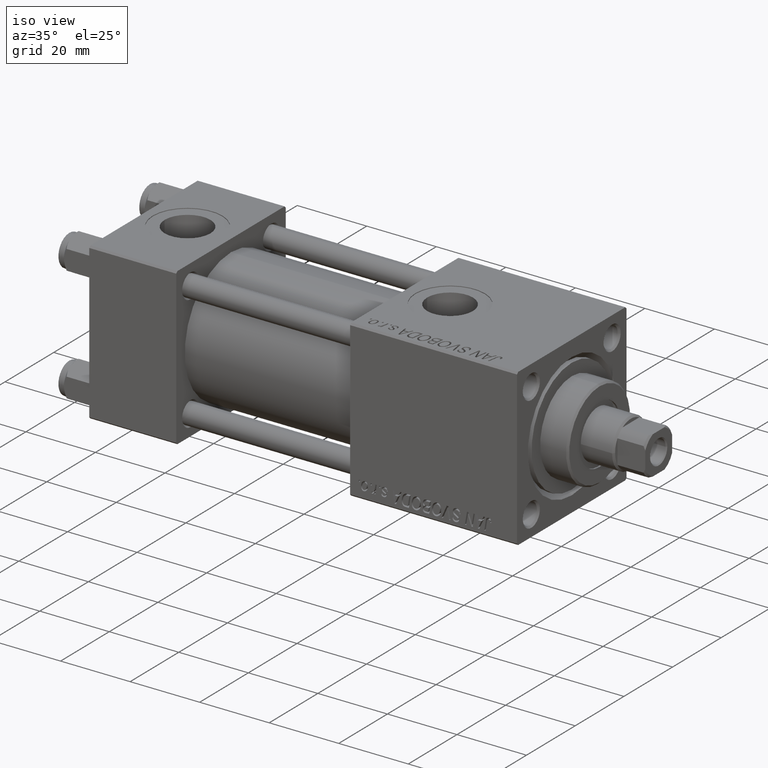
[diagram: clean part render]
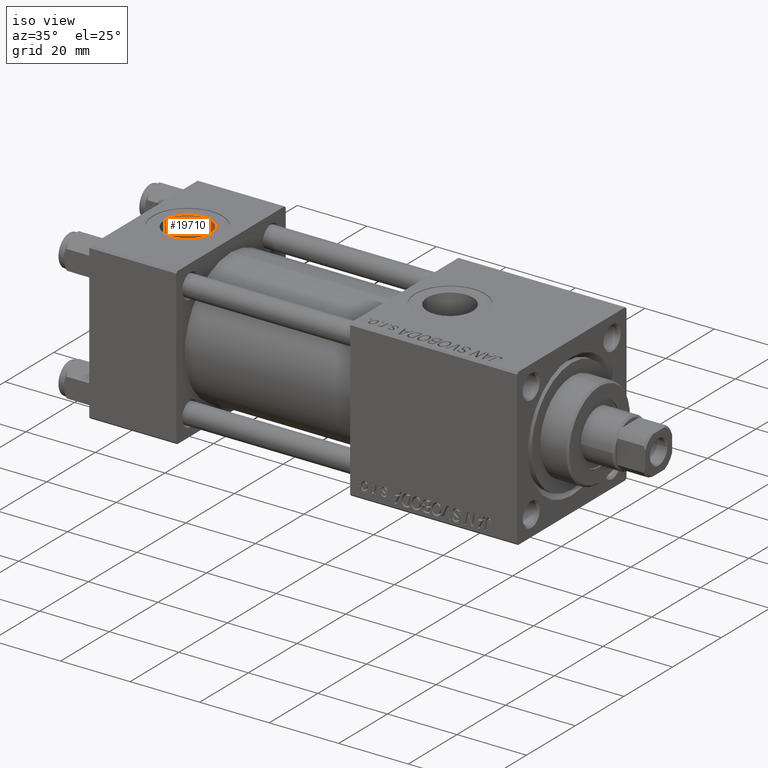
[diagram: same view with one face highlighted and labeled with its STEP entity id]
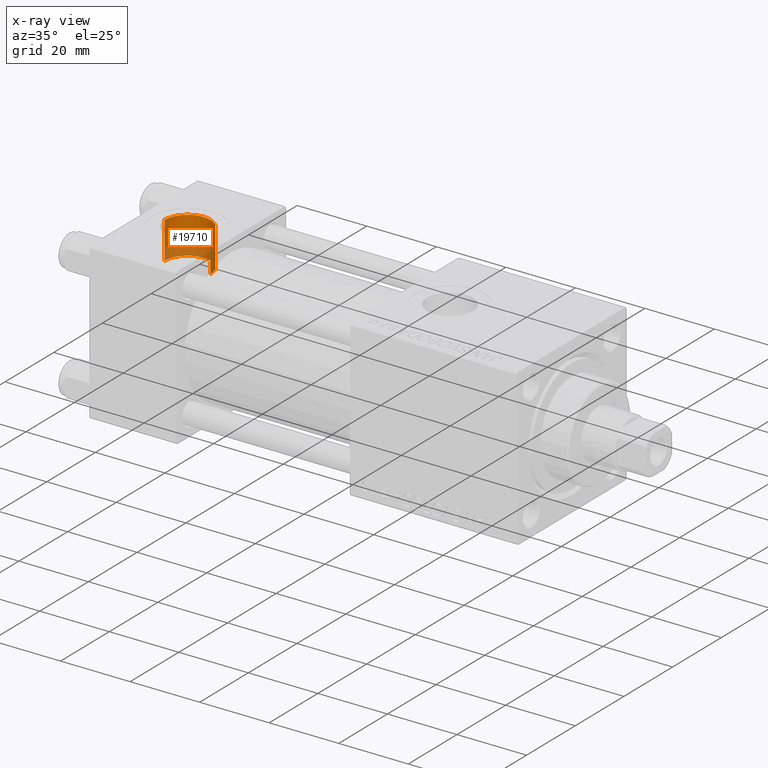
[diagram: x-ray of the same camera — body ghosted, the highlighted face saturated]
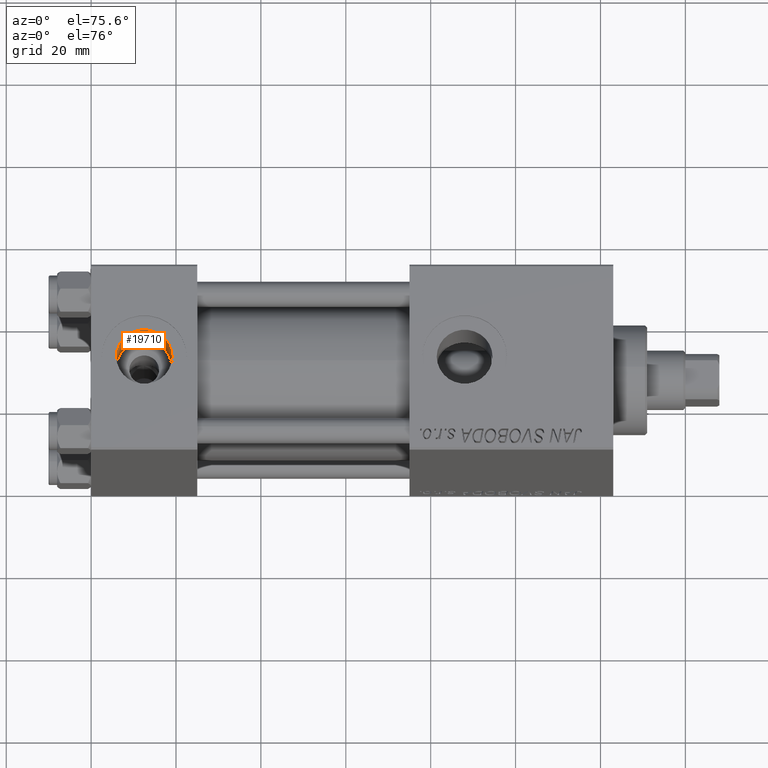
[diagram: same view with one face highlighted and labeled with its STEP entity id]
A machine part, iso view. The second image highlights one B-rep face of the part: STEP entity #19710.
The next image is the same camera in x-ray: the body ghosted, the highlighted face saturated — about 28% of this face is hidden behind the body in this view.
A second angle (auxiliary view) of the same face is appended — the face is thin or edge-on in the first view.
In plain terms, the highlighted cylindrical surface (edge-blend (fillet) strip) has radius 6.58 mm, axis along (0, 0, 1).
Its self-contained STEP definition (entity closure, byte-faithful):
#534 = AXIS2_PLACEMENT_3D ( 'NONE', #52183, #15760, #39780 ) ;
#2375 = CARTESIAN_POINT ( 'NONE',  ( 5.920000000000002593, -9.289058821378490386E-16, 11.69999999999999929 ) ) ;
#2721 = CARTESIAN_POINT ( 'NONE',  ( 5.920000000000002593, -9.289058821378490386E-16, 11.66598726114649409 ) ) ;
#3054 = CARTESIAN_POINT ( 'NONE',  ( 5.920000000000002593, -9.289058821378490386E-16, 22.30000000000000071 ) ) ;
#4837 = EDGE_CURVE ( 'NONE', #49558, #40915, #46651, .T. ) ;
#5030 = CARTESIAN_POINT ( 'NONE',  ( 12.50000000000000000, -1.734723475976807094E-15, 22.30000000000000071 ) ) ;
#5101 = VERTEX_POINT ( 'NONE', #3054 ) ;
#5221 = AXIS2_PLACEMENT_3D ( 'NONE', #28134, #48450, #40277 ) ;
#6535 = CIRCLE ( 'NONE', #36911, 6.579999999999999183 ) ;
#11019 = DIRECTION ( 'NONE',  ( -0.000000000000000000, -0.000000000000000000, 1.000000000000000000 ) ) ;
#13059 = ORIENTED_EDGE ( 'NONE', *, *, #23340, .T. ) ;
#14496 = DIRECTION ( 'NONE',  ( -0.000000000000000000, -0.000000000000000000, 1.000000000000000000 ) ) ;
#14765 = LINE ( 'NONE', #2375, #49410 ) ;
#15760 = DIRECTION ( 'NONE',  ( -0.000000000000000000, -0.000000000000000000, 1.000000000000000000 ) ) ;
#19433 = ORIENTED_EDGE ( 'NONE', *, *, #45445, .F. ) ;
#19710 = ADVANCED_FACE ( 'NONE', ( #36330 ), #47694, .F. ) ;
#23340 = EDGE_CURVE ( 'NONE', #40915, #5101, #6535, .T. ) ;
#24569 = DIRECTION ( 'NONE',  ( 1.000000000000000000, 0.000000000000000000, 0.000000000000000000 ) ) ;
#28134 = CARTESIAN_POINT ( 'NONE',  ( 12.50000000000000000, -1.734723475976807094E-15, 11.66598726114649409 ) ) ;
#28842 = CIRCLE ( 'NONE', #5221, 6.579999999999999183 ) ;
#30829 = CARTESIAN_POINT ( 'NONE',  ( 19.07999999999999829, -1.734723475976807094E-15, 11.69999999999999929 ) ) ;
#33523 = EDGE_LOOP ( 'NONE', ( #19433, #49833, #42870, #13059 ) ) ;
#33770 = VERTEX_POINT ( 'NONE', #2721 ) ;
#36330 = FACE_OUTER_BOUND ( 'NONE', #33523, .T. ) ;
#36833 = EDGE_CURVE ( 'NONE', #33770, #49558, #28842, .T. ) ;
#36911 = AXIS2_PLACEMENT_3D ( 'NONE', #5030, #49106, #24569 ) ;
#37381 = CARTESIAN_POINT ( 'NONE',  ( 19.07999999999999829, -1.734723475976807094E-15, 22.30000000000000071 ) ) ;
#39119 = CARTESIAN_POINT ( 'NONE',  ( 19.07999999999999829, -1.734723475976807094E-15, 11.66598726114649409 ) ) ;
#39780 = DIRECTION ( 'NONE',  ( 1.000000000000000000, 0.000000000000000000, 0.000000000000000000 ) ) ;
#40277 = DIRECTION ( 'NONE',  ( 1.000000000000000000, 0.000000000000000000, 0.000000000000000000 ) ) ;
#40915 = VERTEX_POINT ( 'NONE', #37381 ) ;
#41530 = VECTOR ( 'NONE', #11019, 1000.000000000000000 ) ;
#42870 = ORIENTED_EDGE ( 'NONE', *, *, #4837, .T. ) ;
#45445 = EDGE_CURVE ( 'NONE', #33770, #5101, #14765, .T. ) ;
#46651 = LINE ( 'NONE', #30829, #41530 ) ;
#47694 = CYLINDRICAL_SURFACE ( 'NONE', #534, 6.579999999999999183 ) ;
#48450 = DIRECTION ( 'NONE',  ( -0.000000000000000000, -0.000000000000000000, -1.000000000000000000 ) ) ;
#49106 = DIRECTION ( 'NONE',  ( 0.000000000000000000, 0.000000000000000000, 1.000000000000000000 ) ) ;
#49410 = VECTOR ( 'NONE', #14496, 1000.000000000000000 ) ;
#49558 = VERTEX_POINT ( 'NONE', #39119 ) ;
#49833 = ORIENTED_EDGE ( 'NONE', *, *, #36833, .T. ) ;
#52183 = CARTESIAN_POINT ( 'NONE',  ( 12.50000000000000000, -1.734723475976807094E-15, 11.69999999999999929 ) ) ;